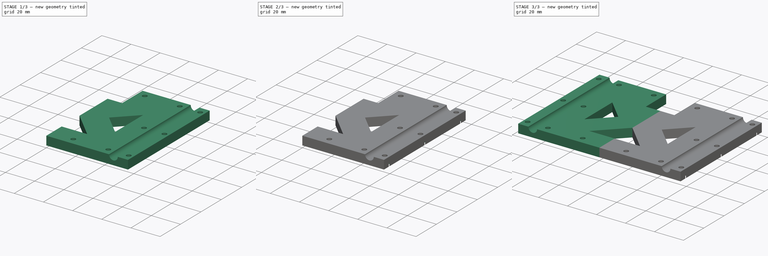
[diagram: build sequence overview — one tinted view per stage of 3, left to right]
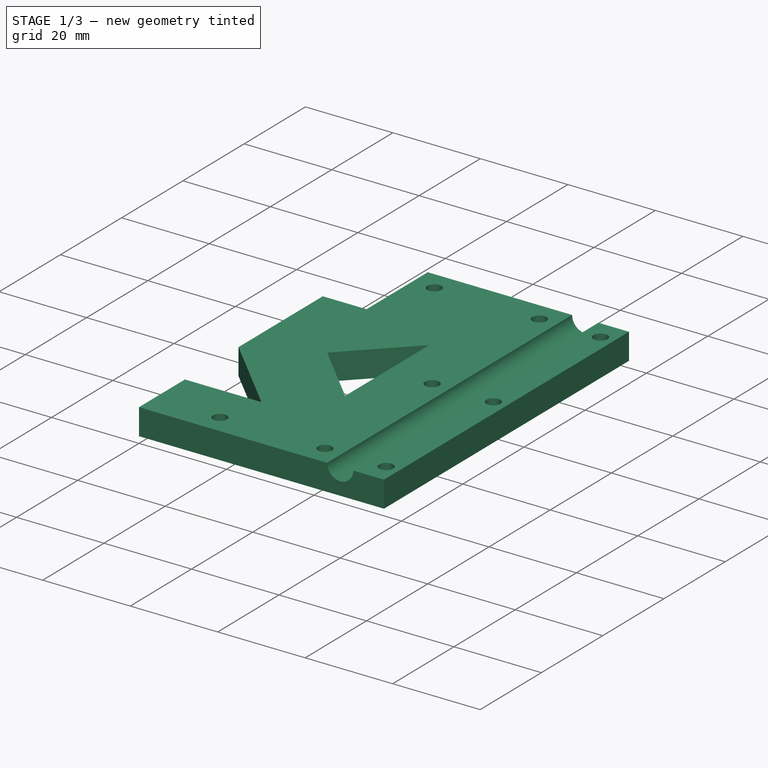
[diagram: stage 1 of 3 — iso view after this stage's code; geometry added in this stage tinted green]
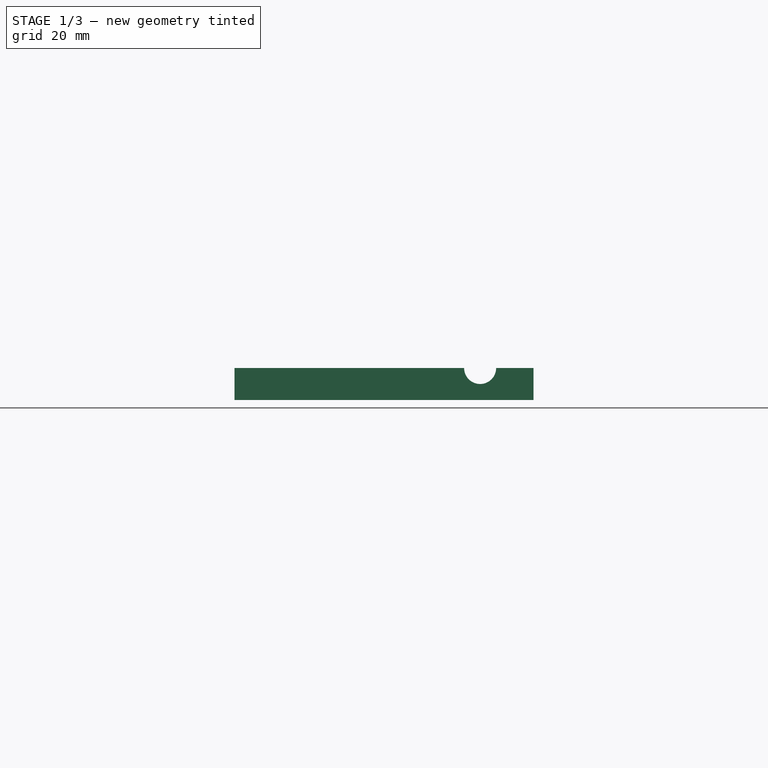
[diagram: stage 1 of 3 — front view after this stage's code; geometry added in this stage tinted green]
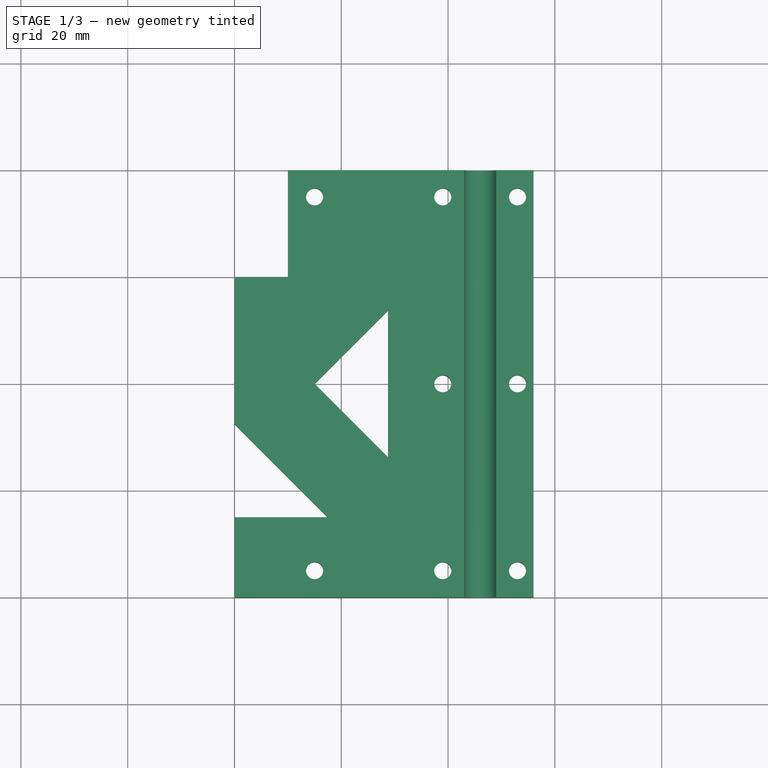
[diagram: stage 1 of 3 — top view after this stage's code; geometry added in this stage tinted green]
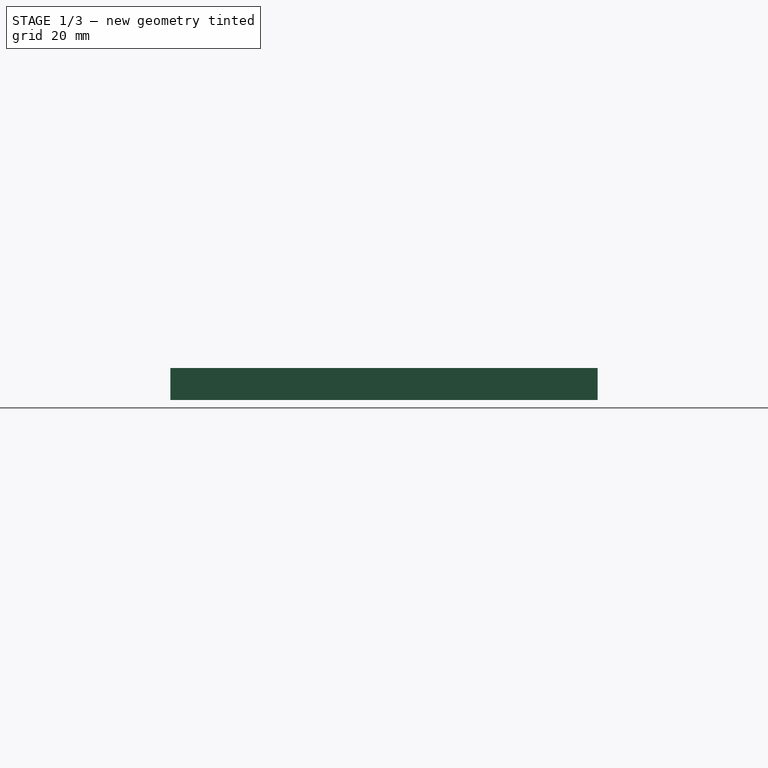
[diagram: stage 1 of 3 — right view after this stage's code; geometry added in this stage tinted green]
FCSTD DOCUMENT  (FreeCAD 0.18R14090 (Git))
Label: BedRodsAlignmentToolHalf2_Alt
License: All rights reserved
LicenseURL: http://en.wikipedia.org/wiki/All_rights_reserved
objects: Sketcher::SketchObject×3, PartDesign::Pocket×2, PartDesign::Pad×1, PartDesign::Plane×1, PartDesign::Body×1, Part::Mirroring×1, Part::MultiFuse×1, App::Part×1
note: 13 computed .brp shape members not serialized (recipe doc carries the construction recipe); baked Part::Feature solids carry a one-line shape summary decoded from their .brp

FEATURE [Sketcher::SketchObject] Sketch  label="ToolBaseSketch"
  MapMode = 5
  Support = -> [XY_Plane001]
  sketch-geometry (37):
    g0: LineSegment StartX=46 StartY=-40 StartZ=0 EndX=0 EndY=-40 EndZ=0
    g1: LineSegment StartX=46 StartY=40 StartZ=0 EndX=56 EndY=40 EndZ=0
    g2: LineSegment StartX=56 StartY=40 StartZ=0 EndX=56 EndY=-40 EndZ=0
    g3: LineSegment StartX=56 StartY=-40 StartZ=0 EndX=46 EndY=-40 EndZ=0
    g4: LineSegment [constr] StartX=0 StartY=40 StartZ=0 EndX=0 EndY=25 EndZ=0
    g5: LineSegment StartX=0 StartY=-40 StartZ=0 EndX=0 EndY=-25 EndZ=0
    g6: LineSegment StartX=0 StartY=-25 StartZ=0 EndX=17.5 EndY=-25 EndZ=0
    g7: LineSegment [constr] StartX=17.5 StartY=25 StartZ=0 EndX=0 EndY=25 EndZ=0
    g8: LineSegment StartX=0 StartY=7.5 StartZ=0 EndX=0 EndY=-7.5 EndZ=0
    g9: LineSegment [constr] StartX=0 StartY=7.5 StartZ=0 EndX=17.5 EndY=25 EndZ=0
    g10: LineSegment StartX=0 StartY=-7.5 StartZ=0 EndX=17.5 EndY=-25 EndZ=0
    g11: LineSegment StartX=15 StartY=0 StartZ=0 EndX=28.75 EndY=13.75 EndZ=0
    g12: LineSegment StartX=28.75 StartY=13.75 StartZ=0 EndX=28.75 EndY=-13.75 EndZ=0
    g13: LineSegment StartX=28.75 StartY=-13.75 StartZ=0 EndX=15 EndY=0 EndZ=0
    g14: LineSegment [constr] StartX=17.5 StartY=25 StartZ=0 EndX=28.75 EndY=13.75 EndZ=0
    g15: Circle CenterX=53 CenterY=0 CenterZ=0 NormalX=0 NormalY=0 NormalZ=1 AngleXU=0 Radius=1.6
    g16: Circle CenterX=53 CenterY=35 CenterZ=0 NormalX=0 NormalY=0 NormalZ=1 AngleXU=0 Radius=1.6
    g17: Circle CenterX=53 CenterY=-35 CenterZ=0 NormalX=0 NormalY=0 NormalZ=1 AngleXU=0 Radius=1.6
    g18: LineSegment [constr] StartX=53 StartY=0 StartZ=0 EndX=53 EndY=35 EndZ=0
    g19: LineSegment [constr] StartX=53 StartY=0 StartZ=0 EndX=53 EndY=-35 EndZ=0
    g20: Circle CenterX=39 CenterY=35 CenterZ=0 NormalX=0 NormalY=0 NormalZ=1 AngleXU=0 Radius=1.6
    g21: Circle CenterX=39 CenterY=0 CenterZ=0 NormalX=0 NormalY=0 NormalZ=1 AngleXU=0 Radius=1.6
    g22: Circle CenterX=39 CenterY=-35 CenterZ=0 NormalX=0 NormalY=0 NormalZ=1 AngleXU=0 Radius=1.6
    g23: Circle CenterX=15 CenterY=35 CenterZ=0 NormalX=0 NormalY=0 NormalZ=1 AngleXU=0 Radius=1.6
    g24: Circle CenterX=15 CenterY=-35 CenterZ=0 NormalX=0 NormalY=0 NormalZ=1 AngleXU=0 Radius=1.6
    g25: LineSegment [constr] StartX=53 StartY=-35 StartZ=0 EndX=39 EndY=-35 EndZ=0
    g26: LineSegment [constr] StartX=39 StartY=-35 StartZ=0 EndX=15 EndY=-35 EndZ=0
    g27: LineSegment [constr] StartX=53 StartY=35 StartZ=0 EndX=39 EndY=35 EndZ=0
    g28: LineSegment [constr] StartX=39 StartY=35 StartZ=0 EndX=15 EndY=35 EndZ=0
    g29: LineSegment [constr] StartX=39 StartY=0 StartZ=0 EndX=39 EndY=-35 EndZ=0
    g30: LineSegment [constr] StartX=39 StartY=0 StartZ=0 EndX=39 EndY=35 EndZ=0
    g31: LineSegment [constr] StartX=15 StartY=35 StartZ=0 EndX=15 EndY=-35 EndZ=0
    g32: LineSegment StartX=46 StartY=40 StartZ=0 EndX=10 EndY=40 EndZ=0
    g33: LineSegment StartX=10 StartY=40 StartZ=0 EndX=10 EndY=20 EndZ=0
    g34: LineSegment StartX=10 StartY=20 StartZ=0 EndX=0 EndY=20 EndZ=0
    g35: LineSegment StartX=0 StartY=20 StartZ=0 EndX=0 EndY=7.5 EndZ=0
    g36: LineSegment [constr] StartX=10 StartY=40 StartZ=0 EndX=0 EndY=40 EndZ=0
  constraints (95):
    c: Horizontal(g0)
    c: Symmetric(g0,g4,g-1)
    c: PointOnObject(g4,g-2)
    c: Horizontal(g1)
    c: Coincident(g2,g1)
    c: Vertical(g2)
    c: Coincident(g3,g2)
    c: Horizontal(g3)
    c: Distance(g1) = 10
    c: Distance(g2) = 80
    c: Coincident(g3,g0)
    c: Equal(g3,g1)
    c: Coincident(g5,g0)
    c: PointOnObject(g5,g-2)
    c: Coincident(g6,g5)
    c: Horizontal(g7)
    c: Horizontal(g6)
    c: Symmetric(g6,g7,g-1)
    c: PointOnObject(g8,g-2)
    c: Symmetric(g8,g8,g-1)
    c: Coincident(g9,g8)
    c: Coincident(g9,g7)
    c: Coincident(g10,g8)
    c: Coincident(g10,g6)
    c: Coincident(g7,g4)
    c: Distance(g8) = 15
    c: Distance(g4) = 15
    c: Angle(g7,g9) = 0.785398
    c: PointOnObject(g11,g-1)
    c: Coincident(g12,g11)
    c: Coincident(g13,g12)
    c: Coincident(g13,g11)
    c: Symmetric(g11,g12,g-1)
    c: Coincident(g14,g7)
    c: Coincident(g14,g11)
    c: Angle(g13,g11) = 1.5708
    c: Distance(g-1,g11) = 15
    c: Angle(g9,g14) = 1.5708
    c: PointOnObject(g15,g-1)
    c: Coincident(g18,g15)
    c: Coincident(g18,g16)
    c: Vertical(g18)
    c: Coincident(g19,g15)
    c: Coincident(g19,g17)
    c: Distance(g16,g1) = 5
    c: PointOnObject(g21,g-1)
    c: Coincident(g25,g17)
    c: Coincident(g25,g22)
    c: Coincident(g26,g22)
    c: Coincident(g26,g24)
    c: Coincident(g27,g16)
    c: Coincident(g27,g20)
    c: Coincident(g28,g23)
    c: Coincident(g29,g21)
    c: Coincident(g29,g22)
    c: Vertical(g29)
    c: Coincident(g30,g21)
    c: Coincident(g30,g20)
    c: Vertical(g30)
    c: Horizontal(g28)
    c: Horizontal(g26)
    c: Horizontal(g25)
    c: Horizontal(g27)
    c: Coincident(g28,g20)
    c: Equal(g16,g20)
    c: Equal(g20,g23)
    c: Equal(g23,g21)
    c: Equal(g21,g15)
    c: Equal(g15,g17)
    c: Equal(g17,g22)
    c: Equal(g22,g24)
    c: Radius(g23) = 1.6
    c: Coincident(g31,g23)
    c: Coincident(g31,g24)
    c: Vertical(g31)
    c: Distance(g23,g4) = 15
    c: Symmetric(g17,g16,g-1)
    c: Distance(g21,g15) = 14
    c: Distance(g15,g2) = 3
    c: Coincident(g32,g1)
    c: Horizontal(g32)
    c: Coincident(g33,g32)
    c: Vertical(g33)
    c: Coincident(g34,g33)
    c: Coincident(g35,g8)
    c: Distance(g1,g4) = 46
    c: Distance(g23,g33) = 5
    c: Coincident(g36,g32)
    c: Coincident(g36,g4)
    c: Horizontal(g36)
    c: PointOnObject(g4,g-2)
    c: Coincident(g35,g34)
    c: PointOnObject(g34,g-2)
    c: Horizontal(g34)
    c: Distance(g34,g4) = 20
FEATURE [PartDesign::Pad] Pad  label="ToolBasePad"
  Length = 6
  Length2 = 100
  Profile = -> Sketch
  Reversed = true
  Type = 0
FEATURE [Sketcher::SketchObject] Sketch001  label="RodNotchSketch"
  ExternalGeometry = -> [Sketch]
  MapMode = 5
  Placement = pos=(0,0,0) rot=(1,0,0;1.5708rad)
  Support = -> [XZ_Plane001]
  sketch-geometry (1):
    g0: Circle CenterX=46 CenterY=0 CenterZ=0 NormalX=0 NormalY=0 NormalZ=1 AngleXU=0 Radius=3
  constraints (2):
    c: Radius(g0) = 3
    c: Coincident(g0,g-3)
FEATURE [PartDesign::Pocket] Pocket  label="RodNotchPocket"
  BaseFeature = -> Pad
  Length = 5
  Length2 = 100
  Midplane = true
  Profile = -> Sketch001
  Type = 1
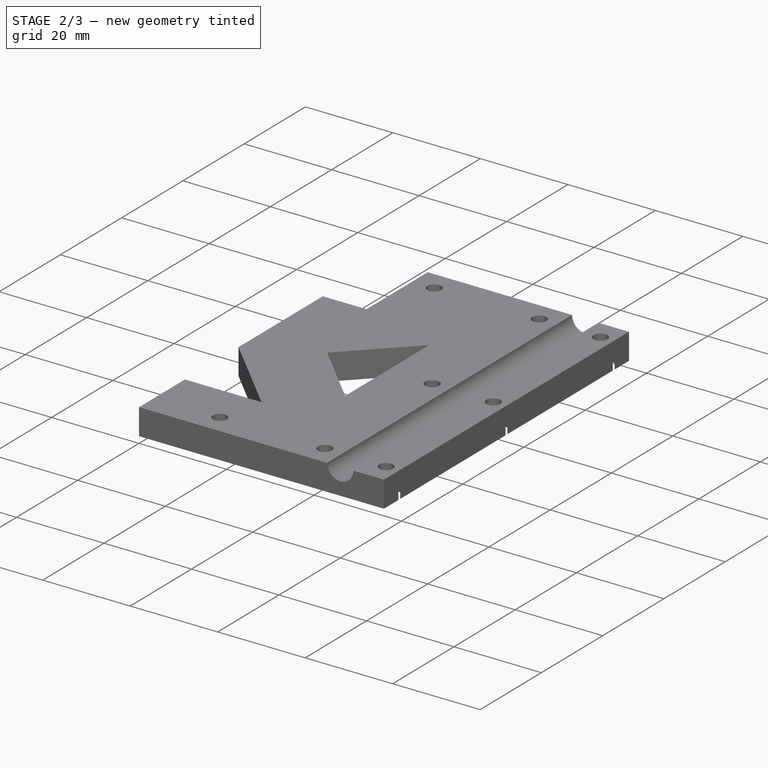
[diagram: stage 2 of 3 — iso view after this stage's code; geometry added in this stage tinted green]
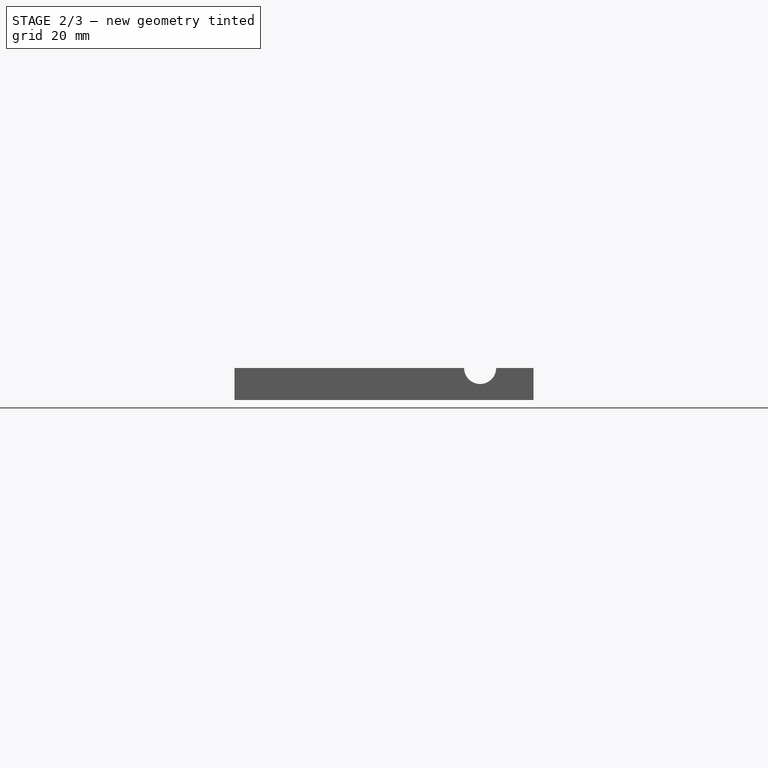
[diagram: stage 2 of 3 — front view after this stage's code; geometry added in this stage tinted green]
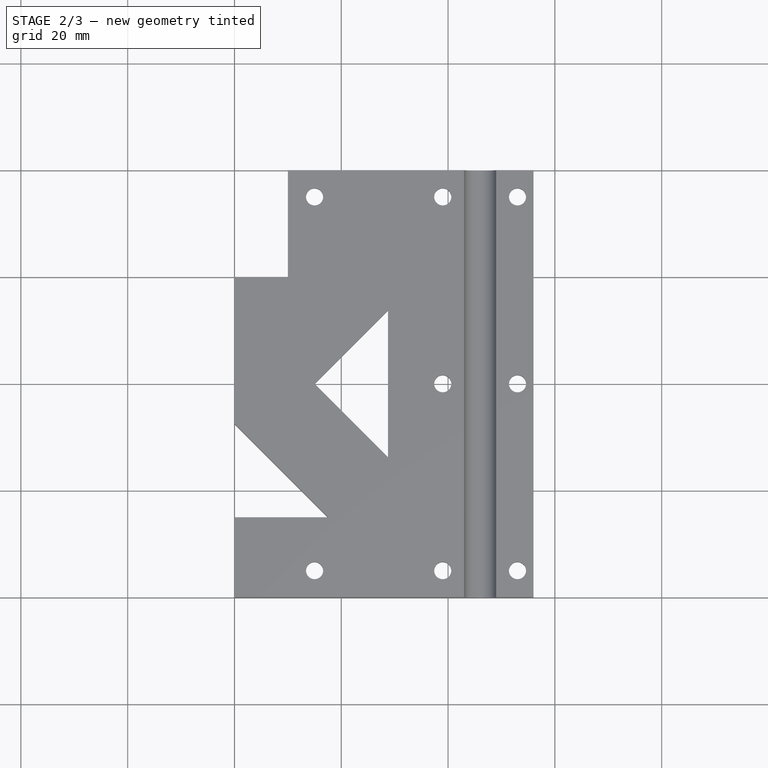
[diagram: stage 2 of 3 — top view after this stage's code; geometry added in this stage tinted green]
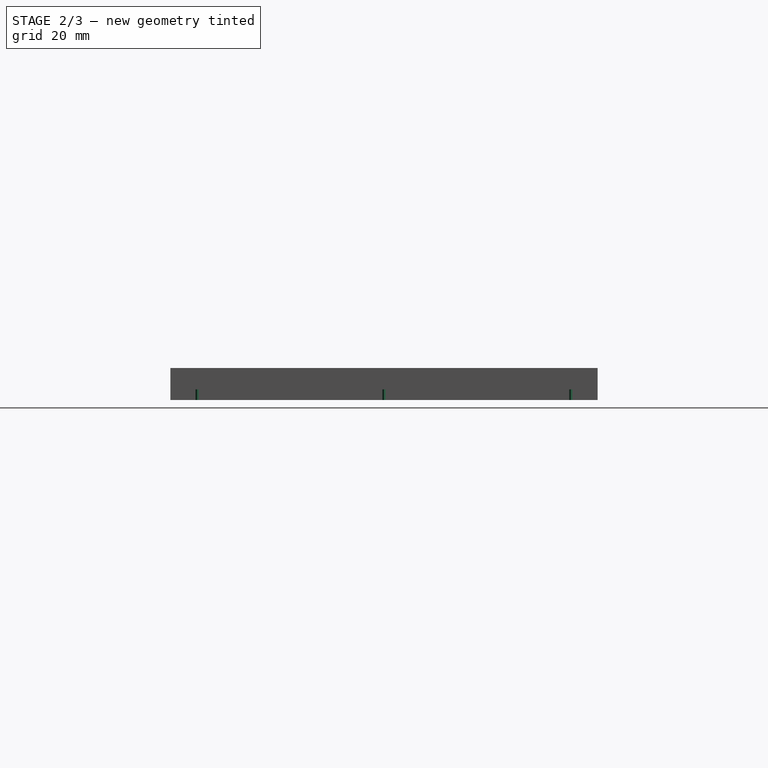
[diagram: stage 2 of 3 — right view after this stage's code; geometry added in this stage tinted green]
FEATURE [PartDesign::Plane] DatumPlane  label="NutsPlane"
  AttachmentOffset = pos=(0,0,-6) rot=(0,0,1;0rad)
  MapMode = 5
  Placement = pos=(0,0,-6) rot=(0,0,1;0rad)
  Support = -> [XY_Plane001]
FEATURE [Sketcher::SketchObject] Sketch002  label="NutsSketch"
  ExternalGeometry = -> [Sketch]
  MapMode = 5
  Placement = pos=(0,0,-6) rot=(0,0,1;0rad)
  Support = -> [DatumPlane]
  sketch-geometry (56):
    g0: LineSegment StartX=16.5877 StartY=32.25 StartZ=0 EndX=18.1754 EndY=35 EndZ=0
    g1: LineSegment StartX=18.1754 StartY=35 StartZ=0 EndX=16.5877 EndY=37.75 EndZ=0
    g2: LineSegment StartX=16.5877 StartY=37.75 StartZ=0 EndX=13.4123 EndY=37.75 EndZ=0
    g3: LineSegment StartX=13.4123 StartY=37.75 StartZ=0 EndX=11.8246 EndY=35 EndZ=0
    g4: LineSegment StartX=11.8246 StartY=35 StartZ=0 EndX=13.4123 EndY=32.25 EndZ=0
    g5: LineSegment StartX=13.4123 StartY=32.25 StartZ=0 EndX=16.5877 EndY=32.25 EndZ=0
    g6: Circle [constr] CenterX=15 CenterY=35 CenterZ=0 NormalX=0 NormalY=0 NormalZ=1 AngleXU=0 Radius=3.17543
    g7: LineSegment StartX=40.5877 StartY=32.25 StartZ=0 EndX=42.1754 EndY=35 EndZ=0
    g8: LineSegment StartX=42.1754 StartY=35 StartZ=0 EndX=40.5877 EndY=37.75 EndZ=0
    g9: LineSegment StartX=40.5877 StartY=37.75 StartZ=0 EndX=37.4123 EndY=37.75 EndZ=0
    g10: LineSegment StartX=37.4123 StartY=37.75 StartZ=0 EndX=35.8246 EndY=35 EndZ=0
    g11: LineSegment StartX=35.8246 StartY=35 StartZ=0 EndX=37.4123 EndY=32.25 EndZ=0
    g12: LineSegment StartX=37.4123 StartY=32.25 StartZ=0 EndX=40.5877 EndY=32.25 EndZ=0
    g13: Circle [constr] CenterX=39 CenterY=35 CenterZ=0 NormalX=0 NormalY=0 NormalZ=1 AngleXU=0 Radius=3.17543
    g14: LineSegment StartX=54.5877 StartY=32.25 StartZ=0 EndX=56.1754 EndY=35 EndZ=0
    g15: LineSegment StartX=56.1754 StartY=35 StartZ=0 EndX=54.5877 EndY=37.75 EndZ=0
    g16: LineSegment StartX=54.5877 StartY=37.75 StartZ=0 EndX=51.4123 EndY=37.75 EndZ=0
    g17: LineSegment StartX=51.4123 StartY=37.75 StartZ=0 EndX=49.8246 EndY=35 EndZ=0
    g18: LineSegment StartX=49.8246 StartY=35 StartZ=0 EndX=51.4123 EndY=32.25 EndZ=0
    g19: LineSegment StartX=51.4123 StartY=32.25 StartZ=0 EndX=54.5877 EndY=32.25 EndZ=0
    g20: Circle [constr] CenterX=53 CenterY=35 CenterZ=0 NormalX=0 NormalY=0 NormalZ=1 AngleXU=0 Radius=3.17543
    g21: LineSegment StartX=54.5877 StartY=-2.75 StartZ=0 EndX=56.1754 EndY=0 EndZ=0
    g22: LineSegment StartX=56.1754 StartY=0 StartZ=0 EndX=54.5877 EndY=2.75 EndZ=0
    g23: LineSegment StartX=54.5877 StartY=2.75 StartZ=0 EndX=51.4123 EndY=2.75 EndZ=0
    g24: LineSegment StartX=51.4123 StartY=2.75 StartZ=0 EndX=49.8246 EndY=0 EndZ=0
    g25: LineSegment StartX=49.8246 StartY=0 StartZ=0 EndX=51.4123 EndY=-2.75 EndZ=0
    g26: LineSegment StartX=51.4123 StartY=-2.75 StartZ=0 EndX=54.5877 EndY=-2.75 EndZ=0
    g27: Circle [constr] CenterX=53 CenterY=0 CenterZ=0 NormalX=0 NormalY=0 NormalZ=1 AngleXU=0 Radius=3.17543
    g28: LineSegment StartX=40.5877 StartY=-2.75 StartZ=0 EndX=42.1754 EndY=0 EndZ=0
    g29: LineSegment StartX=42.1754 StartY=0 StartZ=0 EndX=40.5877 EndY=2.75 EndZ=0
    g30: LineSegment StartX=40.5877 StartY=2.75 StartZ=0 EndX=37.4123 EndY=2.75 EndZ=0
    g31: LineSegment StartX=37.4123 StartY=2.75 StartZ=0 EndX=35.8246 EndY=0 EndZ=0
    g32: LineSegment StartX=35.8246 StartY=0 StartZ=0 EndX=37.4123 EndY=-2.75 EndZ=0
    g33: LineSegment StartX=37.4123 StartY=-2.75 StartZ=0 EndX=40.5877 EndY=-2.75 EndZ=0
    g34: Circle [constr] CenterX=39 CenterY=0 CenterZ=0 NormalX=0 NormalY=0 NormalZ=1 AngleXU=0 Radius=3.17543
    g35: LineSegment StartX=54.5877 StartY=-37.75 StartZ=0 EndX=56.1754 EndY=-35 EndZ=0
    g36: LineSegment StartX=56.1754 StartY=-35 StartZ=0 EndX=54.5877 EndY=-32.25 EndZ=0
    g37: LineSegment StartX=54.5877 StartY=-32.25 StartZ=0 EndX=51.4123 EndY=-32.25 EndZ=0
    g38: LineSegment StartX=51.4123 StartY=-32.25 StartZ=0 EndX=49.8246 EndY=-35 EndZ=0
    g39: LineSegment StartX=49.8246 StartY=-35 StartZ=0 EndX=51.4123 EndY=-37.75 EndZ=0
    g40: LineSegment StartX=51.4123 StartY=-37.75 StartZ=0 EndX=54.5877 EndY=-37.75 EndZ=0
    g41: Circle [constr] CenterX=53 CenterY=-35 CenterZ=0 NormalX=0 NormalY=0 NormalZ=1 AngleXU=0 Radius=3.17543
    g42: LineSegment StartX=40.5877 StartY=-37.75 StartZ=0 EndX=42.1754 EndY=-35 EndZ=0
    g43: LineSegment StartX=42.1754 StartY=-35 StartZ=0 EndX=40.5877 EndY=-32.25 EndZ=0
    g44: LineSegment StartX=40.5877 StartY=-32.25 StartZ=0 EndX=37.4123 EndY=-32.25 EndZ=0
    g45: LineSegment StartX=37.4123 StartY=-32.25 StartZ=0 EndX=35.8246 EndY=-35 EndZ=0
    g46: LineSegment StartX=35.8246 StartY=-35 StartZ=0 EndX=37.4123 EndY=-37.75 EndZ=0
    g47: LineSegment StartX=37.4123 StartY=-37.75 StartZ=0 EndX=40.5877 EndY=-37.75 EndZ=0
    g48: Circle [constr] CenterX=39 CenterY=-35 CenterZ=0 NormalX=0 NormalY=0 NormalZ=1 AngleXU=0 Radius=3.17543
    g49: LineSegment StartX=16.5877 StartY=-37.75 StartZ=0 EndX=18.1754 EndY=-35 EndZ=0
    g50: LineSegment StartX=18.1754 StartY=-35 StartZ=0 EndX=16.5877 EndY=-32.25 EndZ=0
    g51: LineSegment StartX=16.5877 StartY=-32.25 StartZ=0 EndX=13.4123 EndY=-32.25 EndZ=0
    g52: LineSegment StartX=13.4123 StartY=-32.25 StartZ=0 EndX=11.8246 EndY=-35 EndZ=0
    g53: LineSegment StartX=11.8246 StartY=-35 StartZ=0 EndX=13.4123 EndY=-37.75 EndZ=0
    g54: LineSegment StartX=13.4123 StartY=-37.75 StartZ=0 EndX=16.5877 EndY=-37.75 EndZ=0
    g55: Circle [constr] CenterX=15 CenterY=-35 CenterZ=0 NormalX=0 NormalY=0 NormalZ=1 AngleXU=0 Radius=3.17543
  constraints (120):
    c: Coincident(g0,g1)
    c: Coincident(g1,g2)
    c: Coincident(g2,g3)
    c: Coincident(g3,g4)
    c: Coincident(g4,g5)
    c: Coincident(g5,g0)
    c: Equal(g0, g1-g5) x5
    c: PointOnObject(g0,g6)
    c: PointOnObject(g1,g6)
    c: PointOnObject(g2,g6)
    c: PointOnObject(g3,g6)
    c: PointOnObject(g4,g6)
    c: PointOnObject(g5,g6)
    c: Coincident(g7,g8)
    c: Coincident(g8,g9)
    c: Coincident(g9,g10)
    c: Coincident(g10,g11)
    c: Coincident(g11,g12)
    c: Coincident(g12,g7)
    c: Equal(g7, g8-g12) x5
    c: PointOnObject(g7,g13)
    c: PointOnObject(g8,g13)
    c: PointOnObject(g9,g13)
    c: PointOnObject(g10,g13)
    c: PointOnObject(g11,g13)
    c: PointOnObject(g12,g13)
    c: Coincident(g14,g15)
    c: Coincident(g15,g16)
    c: Coincident(g16,g17)
    c: Coincident(g17,g18)
    c: Coincident(g18,g19)
    c: Coincident(g19,g14)
    c: Equal(g14, g15-g19) x5
    c: PointOnObject(g14,g20)
    c: PointOnObject(g15,g20)
    c: PointOnObject(g16,g20)
    c: PointOnObject(g17,g20)
    c: PointOnObject(g18,g20)
    c: PointOnObject(g19,g20)
    c: Coincident(g21,g22)
    c: Coincident(g22,g23)
    c: Coincident(g23,g24)
    c: Coincident(g24,g25)
    c: Coincident(g25,g26)
    c: Coincident(g26,g21)
    c: Equal(g21, g22-g26) x5
    c: PointOnObject(g21,g27)
    c: PointOnObject(g22,g27)
    c: PointOnObject(g23,g27)
    c: PointOnObject(g24,g27)
    c: PointOnObject(g25,g27)
    c: PointOnObject(g26,g27)
    c: Coincident(g28,g29)
    c: Coincident(g29,g30)
    c: Coincident(g30,g31)
    c: Coincident(g31,g32)
    c: Coincident(g32,g33)
    c: Coincident(g33,g28)
    c: Equal(g28, g29-g33) x5
    c: PointOnObject(g28,g34)
    c: PointOnObject(g29,g34)
    c: PointOnObject(g30,g34)
    c: PointOnObject(g31,g34)
    c: PointOnObject(g32,g34)
    c: PointOnObject(g33,g34)
    c: Coincident(g35,g36)
    c: Coincident(g36,g37)
    c: Coincident(g37,g38)
    c: Coincident(g38,g39)
    c: Coincident(g39,g40)
    c: Coincident(g40,g35)
    c: Equal(g35, g36-g40) x5
    c: PointOnObject(g35,g41)
    c: PointOnObject(g36,g41)
    c: PointOnObject(g37,g41)
    c: PointOnObject(g38,g41)
    c: PointOnObject(g39,g41)
    c: PointOnObject(g40,g41)
    c: Coincident(g42,g43)
    c: Coincident(g43,g44)
    c: Coincident(g44,g45)
    c: Coincident(g45,g46)
    c: Coincident(g46,g47)
    c: Coincident(g47,g42)
    c: Equal(g42, g43-g47) x5
    c: PointOnObject(g42,g48)
    c: PointOnObject(g43,g48)
    c: PointOnObject(g44,g48)
    c: PointOnObject(g45,g48)
    c: PointOnObject(g46,g48)
    c: PointOnObject(g47,g48)
    c: Coincident(g49,g50)
    c: Coincident(g50,g51)
    c: Coincident(g51,g52)
    c: Coincident(g52,g53)
    c: Coincident(g53,g54)
    c: Coincident(g54,g49)
    c: Equal(g49, g50-g54) x5
    c: PointOnObject(g49,g55)
    c: PointOnObject(g50,g55)
    c: PointOnObject(g51,g55)
    c: PointOnObject(g52,g55)
    c: PointOnObject(g53,g55)
    c: PointOnObject(g54,g55)
    c: Horizontal(g54)
    c: Horizontal(g47)
    c: Horizontal(g40)
    c: Horizontal(g26)
    c: Horizontal(g33)
    c: Horizontal(g19)
    c: Horizontal(g12)
    c: Horizontal(g5)
    c: Equal(g5,g12)
    c: Equal(g12,g19)
    c: Equal(g19,g26)
    c: Equal(g26,g33)
    c: Equal(g33,g40)
    c: Equal(g40,g47)
    c: Equal(g47,g54)
    c: Distance(g2,g4) = 5.5
FEATURE [PartDesign::Pocket] Pocket001  label="NutsPocket"
  BaseFeature = -> Pocket
  Length = 2
  Length2 = 100
  Profile = -> Sketch002
  Reversed = true
  Type = 0
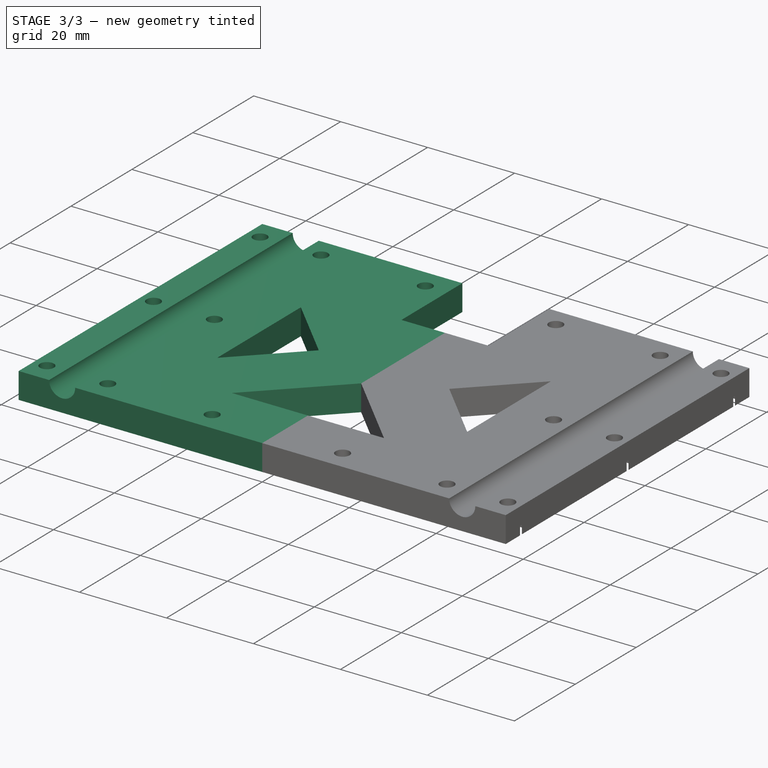
[diagram: stage 3 of 3 — iso view after this stage's code; geometry added in this stage tinted green]
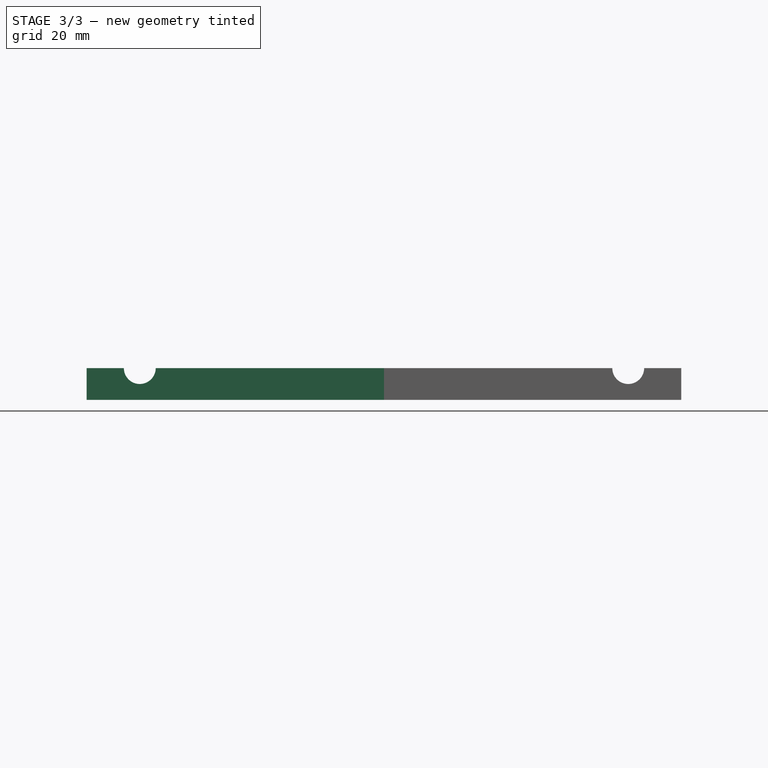
[diagram: stage 3 of 3 — front view after this stage's code; geometry added in this stage tinted green]
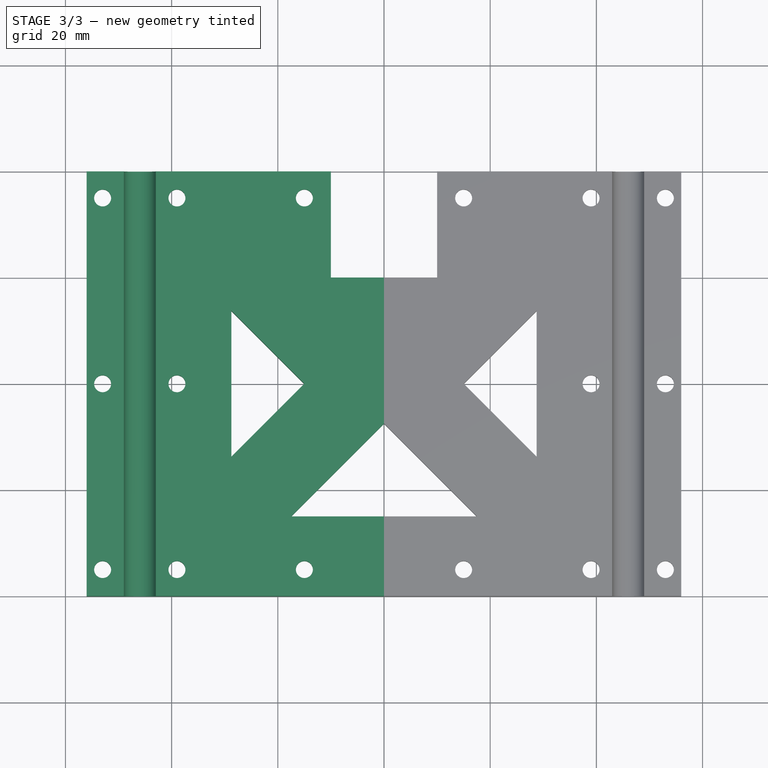
[diagram: stage 3 of 3 — top view after this stage's code; geometry added in this stage tinted green]
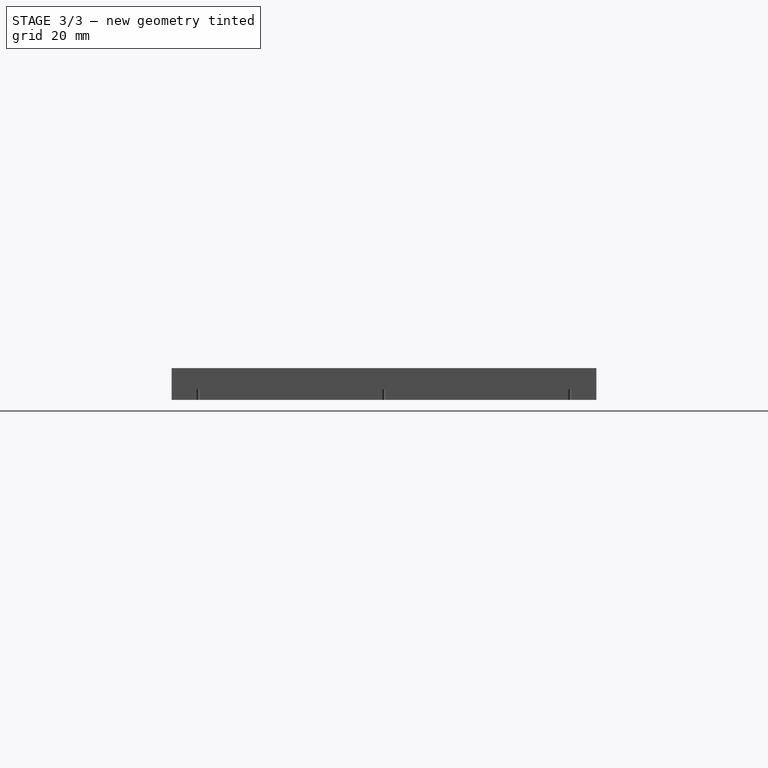
[diagram: stage 3 of 3 — right view after this stage's code; geometry added in this stage tinted green]
FEATURE [PartDesign::Body] Body  label="ToolBody"
  Group = -> [Sketch,Pad,Sketch001,Pocket,DatumPlane,Sketch002,Pocket001]
  Origin = -> Origin001
  Tip = -> Pocket001
FEATURE [Part::Mirroring] Part__Mirroring  label="ToolBody_Mirror"
  Base = (0,0,0)
  Normal = (1,0,0)
  Source = -> Body
FEATURE [Part::MultiFuse] Fusion  label="ToolFusion"
  Shapes = -> [Part__Mirroring,Body]
FEATURE [App::Part] Part  label="ToolPart"
  Group = -> [Body,Part__Mirroring,Fusion]
  License = CC BY 3.0
  LicenseURL = http://creativecommons.org/licenses/by/3.0/
  Origin = -> Origin
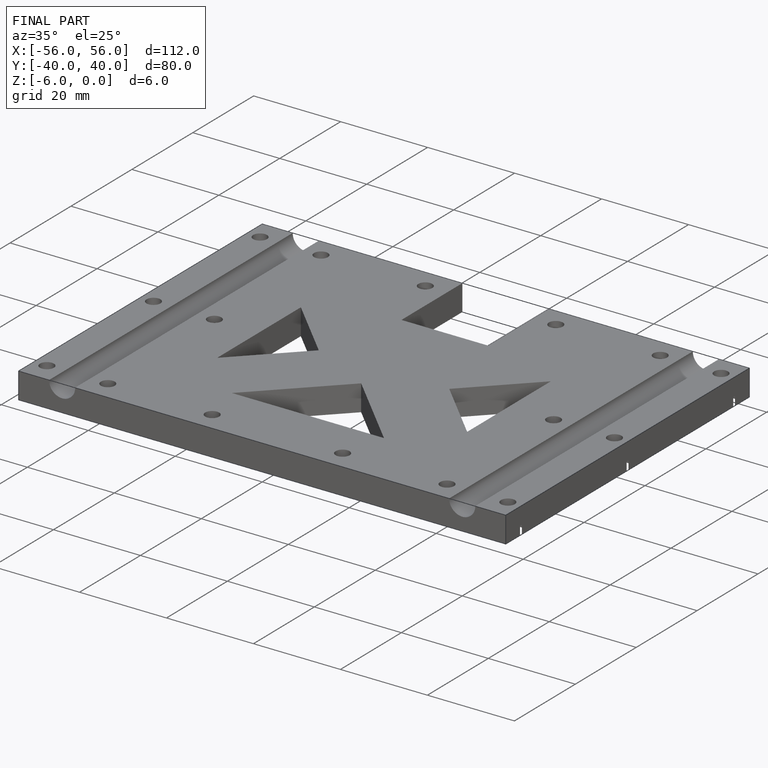
[diagram: finished part — iso view with bounding-box wireframe]
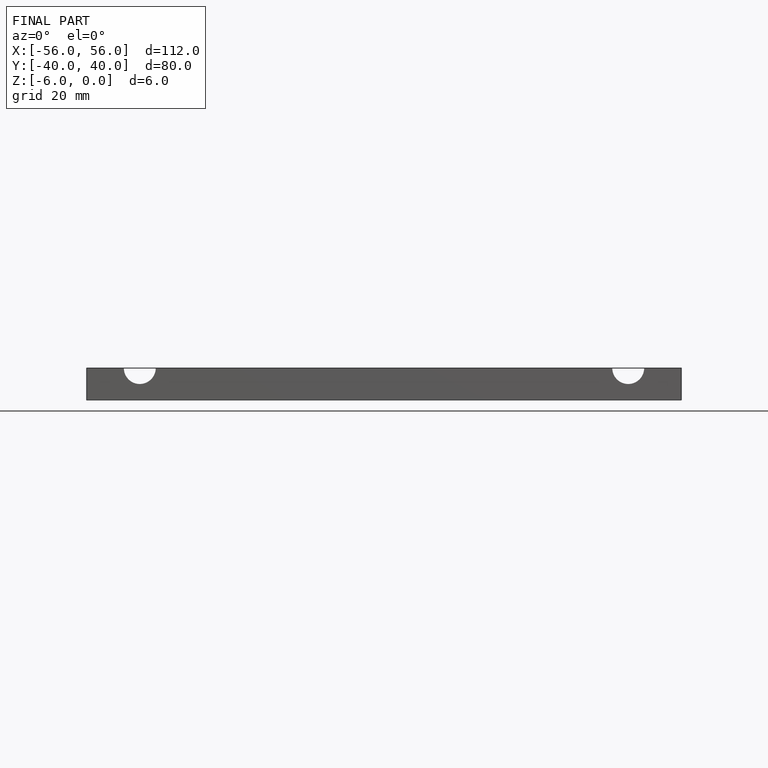
[diagram: finished part — front view with bounding-box wireframe]
